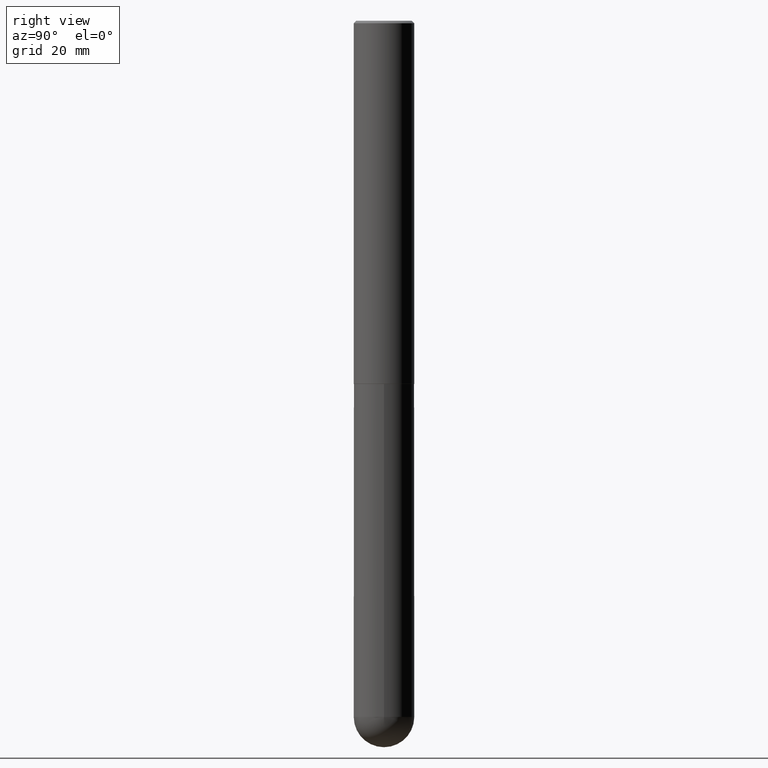
[diagram: clean part render]
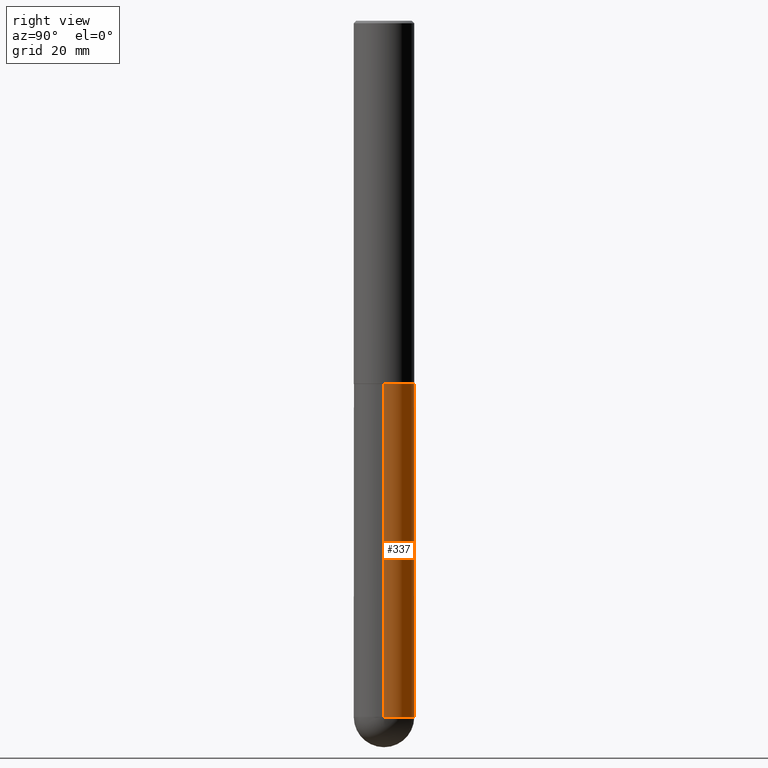
[diagram: same view with one face highlighted and labeled with its STEP entity id]
A machine part, right view. The second image highlights one B-rep face of the part: STEP entity #337.
In plain terms, the highlighted cylindrical surface (edge-blend (fillet) strip) has radius 6.35 mm, axis along (-0, 0, 1).
Its self-contained STEP definition (entity closure, byte-faithful):
#1 = ORIENTED_EDGE ( 'NONE', *, *, #58, .F. ) ;
#4 = CARTESIAN_POINT ( 'NONE',  ( -0.2500000000000000000, 1.776356839400250465E-15, -1.229733772563726445E-29 ) ) ;
#15 = DIRECTION ( 'NONE',  ( 1.000000000000000000, -6.982962677686262766E-15, 0.000000000000000000 ) ) ;
#26 = VECTOR ( 'NONE', #48, 39.37007874015748143 ) ;
#31 = EDGE_CURVE ( 'NONE', #228, #195, #86, .T. ) ;
#48 = DIRECTION ( 'NONE',  ( -2.445468806185136877E-29, 3.491481338843145188E-15, 1.000000000000000000 ) ) ;
#58 = EDGE_CURVE ( 'NONE', #200, #228, #83, .T. ) ;
#81 = CARTESIAN_POINT ( 'NONE',  ( 1.745740669421707884E-15, 0.2499999999999800160, -5.750000000000001776 ) ) ;
#83 = LINE ( 'NONE', #205, #26 ) ;
#86 = CIRCLE ( 'NONE', #145, 0.2500000000000000000 ) ;
#96 = CARTESIAN_POINT ( 'NONE',  ( 0.2500000000000000000, -1.702097152686033033E-14, -5.750000000000000888 ) ) ;
#102 = ORIENTED_EDGE ( 'NONE', *, *, #412, .T. ) ;
#107 = ORIENTED_EDGE ( 'NONE', *, *, #125, .T. ) ;
#112 = CARTESIAN_POINT ( 'NONE',  ( -0.2500000000000000000, -1.349887401803851318E-14, -3.000000000000000444 ) ) ;
#113 = AXIS2_PLACEMENT_3D ( 'NONE', #298, #234, #236 ) ;
#122 = EDGE_CURVE ( 'NONE', #200, #277, #299, .T. ) ;
#125 = EDGE_CURVE ( 'NONE', #277, #253, #367, .T. ) ;
#129 = VECTOR ( 'NONE', #407, 39.37007874015748143 ) ;
#143 = DIRECTION ( 'NONE',  ( -2.445468806185136597E-29, 3.491481338843145583E-15, 1.000000000000000000 ) ) ;
#144 = CARTESIAN_POINT ( 'NONE',  ( 7.336406418555409790E-29, -1.047444401652943635E-14, -3.000000000000000444 ) ) ;
#145 = AXIS2_PLACEMENT_3D ( 'NONE', #144, #262, #325 ) ;
#153 = CYLINDRICAL_SURFACE ( 'NONE', #270, 0.2500000000000000000 ) ;
#178 = DIRECTION ( 'NONE',  ( -2.445468806185136597E-29, 3.491481338843145583E-15, 1.000000000000000000 ) ) ;
#195 = VERTEX_POINT ( 'NONE', #112 ) ;
#200 = VERTEX_POINT ( 'NONE', #96 ) ;
#205 = CARTESIAN_POINT ( 'NONE',  ( 0.2500000000000000000, -1.745740669421566678E-15, 1.219044193948983948E-29 ) ) ;
#206 = CARTESIAN_POINT ( 'NONE',  ( 1.406144563556453767E-28, -2.007601769834809252E-14, -5.750000000000000888 ) ) ;
#228 = VERTEX_POINT ( 'NONE', #349 ) ;
#234 = DIRECTION ( 'NONE',  ( -2.445468806185136597E-29, 3.491481338843145583E-15, 1.000000000000000000 ) ) ;
#236 = DIRECTION ( 'NONE',  ( 1.000000000000000000, -6.982962677686262766E-15, 0.000000000000000000 ) ) ;
#253 = VERTEX_POINT ( 'NONE', #377 ) ;
#262 = DIRECTION ( 'NONE',  ( -2.445468806185136597E-29, 3.491481338843145583E-15, 1.000000000000000000 ) ) ;
#270 = AXIS2_PLACEMENT_3D ( 'NONE', #273, #178, #406 ) ;
#273 = CARTESIAN_POINT ( 'NONE',  ( 0.000000000000000000, 0.000000000000000000, 0.000000000000000000 ) ) ;
#277 = VERTEX_POINT ( 'NONE', #81 ) ;
#280 = LINE ( 'NONE', #4, #129 ) ;
#284 = EDGE_LOOP ( 'NONE', ( #107, #102, #336, #1, #354 ) ) ;
#290 = AXIS2_PLACEMENT_3D ( 'NONE', #206, #143, #15 ) ;
#298 = CARTESIAN_POINT ( 'NONE',  ( 1.406144563556453767E-28, -2.007601769834809252E-14, -5.750000000000000888 ) ) ;
#299 = CIRCLE ( 'NONE', #290, 0.2500000000000000000 ) ;
#325 = DIRECTION ( 'NONE',  ( 1.000000000000000000, -6.982962677686262766E-15, 0.000000000000000000 ) ) ;
#330 = FACE_OUTER_BOUND ( 'NONE', #284, .T. ) ;
#336 = ORIENTED_EDGE ( 'NONE', *, *, #31, .F. ) ;
#337 = ADVANCED_FACE ( 'NONE', ( #330 ), #153, .T. ) ;
#349 = CARTESIAN_POINT ( 'NONE',  ( 0.2500000000000000000, -1.222018468595100303E-14, -3.000000000000000444 ) ) ;
#354 = ORIENTED_EDGE ( 'NONE', *, *, #122, .T. ) ;
#367 = CIRCLE ( 'NONE', #113, 0.2500000000000000000 ) ;
#377 = CARTESIAN_POINT ( 'NONE',  ( -0.2500000000000000000, -1.349887401803851318E-14, -5.750000000000000888 ) ) ;
#406 = DIRECTION ( 'NONE',  ( 1.000000000000000000, -6.982962677686266711E-15, 4.876176775795935793E-29 ) ) ;
#407 = DIRECTION ( 'NONE',  ( -2.445468806185136877E-29, 3.491481338843145188E-15, 1.000000000000000000 ) ) ;
#412 = EDGE_CURVE ( 'NONE', #253, #195, #280, .T. ) ;